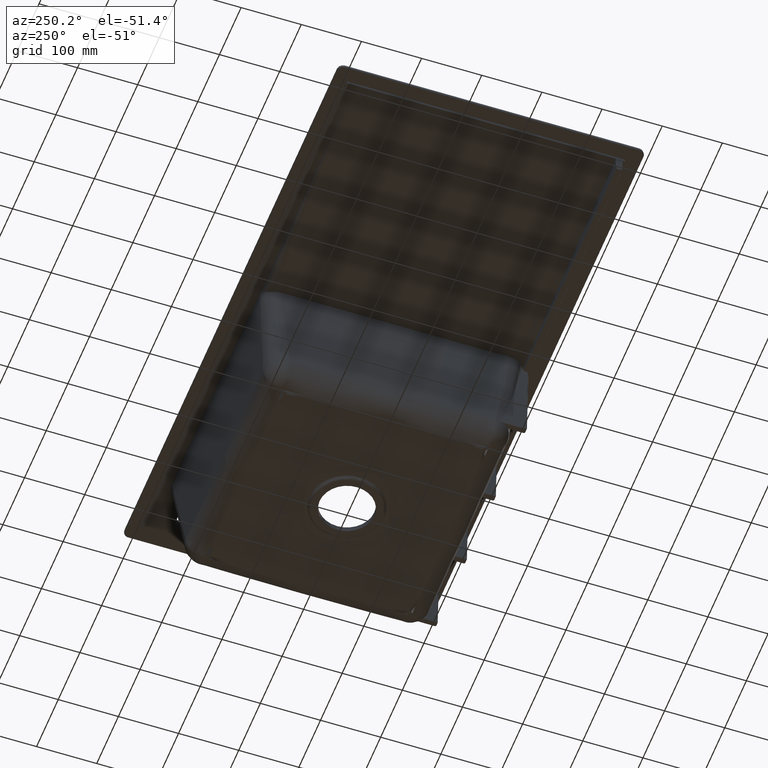
[diagram: clean part render]
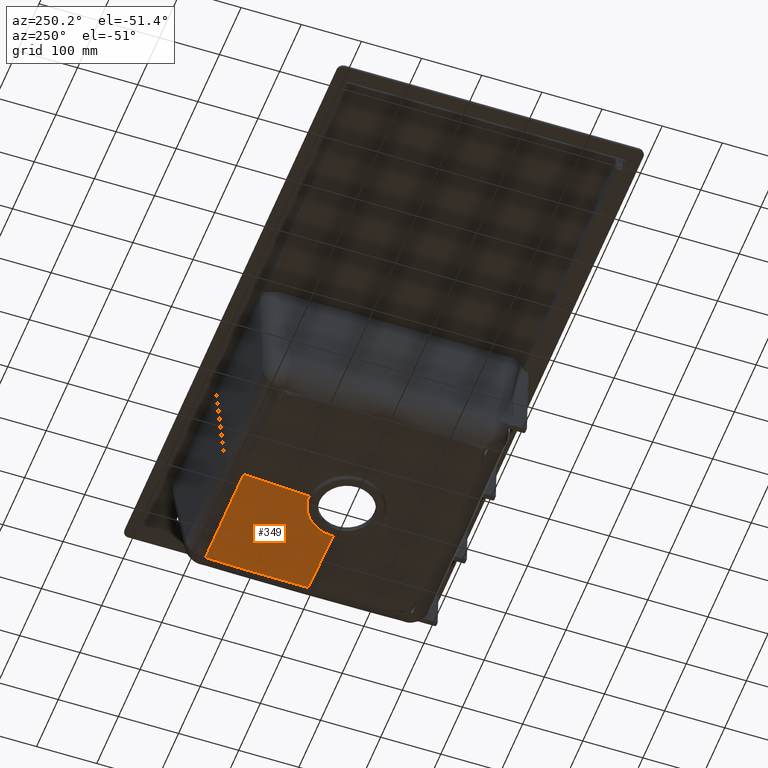
[diagram: same view with one face highlighted and labeled with its STEP entity id]
A machine part, auxiliary view. The second image highlights one B-rep face of the part: STEP entity #349.
In plain terms, the highlighted face is a freeform B-spline surface patch.
Its self-contained STEP definition (entity closure, byte-faithful):
#57=B_SPLINE_SURFACE_WITH_KNOTS('',3,3,((#7493,#7494,#7495,#7496,#7497,
#7498,#7499,#7500,#7501,#7502,#7503,#7504,#7505,#7506,#7507,#7508,#7509,
#7510,#7511,#7512,#7513,#7514,#7515,#7516,#7517,#7518,#7519,#7520,#7521,
#7522,#7523,#7524,#7525,#7526,#7527,#7528),(#7529,#7530,#7531,#7532,#7533,
#7534,#7535,#7536,#7537,#7538,#7539,#7540,#7541,#7542,#7543,#7544,#7545,
#7546,#7547,#7548,#7549,#7550,#7551,#7552,#7553,#7554,#7555,#7556,#7557,
#7558,#7559,#7560,#7561,#7562,#7563,#7564),(#7565,#7566,#7567,#7568,#7569,
#7570,#7571,#7572,#7573,#7574,#7575,#7576,#7577,#7578,#7579,#7580,#7581,
#7582,#7583,#7584,#7585,#7586,#7587,#7588,#7589,#7590,#7591,#7592,#7593,
#7594,#7595,#7596,#7597,#7598,#7599,#7600),(#7601,#7602,#7603,#7604,#7605,
#7606,#7607,#7608,#7609,#7610,#7611,#7612,#7613,#7614,#7615,#7616,#7617,
#7618,#7619,#7620,#7621,#7622,#7623,#7624,#7625,#7626,#7627,#7628,#7629,
#7630,#7631,#7632,#7633,#7634,#7635,#7636),(#7637,#7638,#7639,#7640,#7641,
#7642,#7643,#7644,#7645,#7646,#7647,#7648,#7649,#7650,#7651,#7652,#7653,
#7654,#7655,#7656,#7657,#7658,#7659,#7660,#7661,#7662,#7663,#7664,#7665,
#7666,#7667,#7668,#7669,#7670,#7671,#7672),(#7673,#7674,#7675,#7676,#7677,
#7678,#7679,#7680,#7681,#7682,#7683,#7684,#7685,#7686,#7687,#7688,#7689,
#7690,#7691,#7692,#7693,#7694,#7695,#7696,#7697,#7698,#7699,#7700,#7701,
#7702,#7703,#7704,#7705,#7706,#7707,#7708),(#7709,#7710,#7711,#7712,#7713,
#7714,#7715,#7716,#7717,#7718,#7719,#7720,#7721,#7722,#7723,#7724,#7725,
#7726,#7727,#7728,#7729,#7730,#7731,#7732,#7733,#7734,#7735,#7736,#7737,
#7738,#7739,#7740,#7741,#7742,#7743,#7744),(#7745,#7746,#7747,#7748,#7749,
#7750,#7751,#7752,#7753,#7754,#7755,#7756,#7757,#7758,#7759,#7760,#7761,
#7762,#7763,#7764,#7765,#7766,#7767,#7768,#7769,#7770,#7771,#7772,#7773,
#7774,#7775,#7776,#7777,#7778,#7779,#7780),(#7781,#7782,#7783,#7784,#7785,
#7786,#7787,#7788,#7789,#7790,#7791,#7792,#7793,#7794,#7795,#7796,#7797,
#7798,#7799,#7800,#7801,#7802,#7803,#7804,#7805,#7806,#7807,#7808,#7809,
#7810,#7811,#7812,#7813,#7814,#7815,#7816),(#7817,#7818,#7819,#7820,#7821,
#7822,#7823,#7824,#7825,#7826,#7827,#7828,#7829,#7830,#7831,#7832,#7833,
#7834,#7835,#7836,#7837,#7838,#7839,#7840,#7841,#7842,#7843,#7844,#7845,
#7846,#7847,#7848,#7849,#7850,#7851,#7852),(#7853,#7854,#7855,#7856,#7857,
#7858,#7859,#7860,#7861,#7862,#7863,#7864,#7865,#7866,#7867,#7868,#7869,
#7870,#7871,#7872,#7873,#7874,#7875,#7876,#7877,#7878,#7879,#7880,#7881,
#7882,#7883,#7884,#7885,#7886,#7887,#7888),(#7889,#7890,#7891,#7892,#7893,
#7894,#7895,#7896,#7897,#7898,#7899,#7900,#7901,#7902,#7903,#7904,#7905,
#7906,#7907,#7908,#7909,#7910,#7911,#7912,#7913,#7914,#7915,#7916,#7917,
#7918,#7919,#7920,#7921,#7922,#7923,#7924)),.UNSPECIFIED.,.F.,.F.,.F.,(4,
1,1,1,1,1,1,1,1,4),(4,1,1,1,1,1,1,1,1,1,1,1,1,1,1,1,1,1,1,1,1,1,1,1,1,1,
1,1,1,1,1,1,1,4),(0.,0.167731772913804,0.271765301299579,0.375798829685353,
0.427815593878241,0.479832358071128,0.531849122264015,0.557857504360459,
0.583865886456902,1.),(0.,0.0825609723011587,0.0968941111876054,0.111227250074052,
0.139893527846945,0.197226083392732,0.311891194484306,0.426556305575879,
0.483888861121666,0.51255513889456,0.526888277781006,0.534054847224229,
0.537638131945841,0.539429774306647,0.54032559548705,0.541221416667453,
0.544804701389065,0.548387986110676,0.551971270832288,0.555554555553899,
0.559137840275511,0.560929482636317,0.56182530381672,0.562721124997123,
0.569887694440346,0.59855397221324,0.655886527759026,0.7705516388506,0.885216749942173,
0.94254930548796,0.971215583260854,0.9855487221473,0.999881861033747,1.),
 .UNSPECIFIED.);
#349=ADVANCED_FACE('',(#590),#57,.T.);
#590=FACE_OUTER_BOUND('',#789,.T.);
#789=EDGE_LOOP('',(#1516,#1517,#1518,#1519,#1520,#1521,#1522));
#1066=B_SPLINE_CURVE_WITH_KNOTS('',3,(#6061,#6062,#6063,#6064),
 .UNSPECIFIED.,.F.,.F.,(4,4),(0.,1.),.UNSPECIFIED.);
#1067=B_SPLINE_CURVE_WITH_KNOTS('',3,(#6066,#6067,#6068,#6069,#6070,#6071,
#6072,#6073,#6074,#6075),.UNSPECIFIED.,.F.,.F.,(4,1,1,1,1,1,1,4),(0.,0.0585026445089107,
0.121269134874983,0.246802115607129,0.372335096339274,0.497868077071419,
0.74893403853571,1.),.UNSPECIFIED.);
#1073=B_SPLINE_CURVE_WITH_KNOTS('',3,(#6647,#6648,#6649,#6650,#6651,#6652,
#6653,#6654,#6655,#6656,#6657,#6658,#6659,#6660,#6661,#6662),
 .UNSPECIFIED.,.F.,.F.,(4,2,2,2,2,2,2,4),(0.,0.500000000000001,0.750000000000001,
0.875000000000001,0.937500000000001,0.968750000000001,0.984375,1.),
 .UNSPECIFIED.);
#1076=B_SPLINE_CURVE_WITH_KNOTS('',3,(#6782,#6783,#6784,#6785,#6786,#6787,
#6788,#6789,#6790,#6791,#6792,#6793,#6794,#6795,#6796,#6797),
 .UNSPECIFIED.,.F.,.F.,(4,2,2,2,2,2,2,4),(0.,0.0156249999999999,0.0312499999999998,
0.0624999999999997,0.125,0.25,0.5,1.),.UNSPECIFIED.);
#1077=B_SPLINE_CURVE_WITH_KNOTS('',3,(#7432,#7433,#7434,#7435,#7436,#7437,
#7438,#7439,#7440,#7441,#7442,#7443,#7444,#7445,#7446,#7447,#7448,#7449,
#7450,#7451,#7452,#7453,#7454,#7455,#7456,#7457,#7458,#7459,#7460,#7461,
#7462,#7463,#7464,#7465,#7466,#7467,#7468,#7469,#7470,#7471,#7472,#7473,
#7474,#7475,#7476),.UNSPECIFIED.,.F.,.F.,(4,2,2,2,1,1,1,1,2,2,2,2,2,2,1,
2,2,2,2,2,2,1,1,2,2,4),(0.,0.125000000000017,0.187500000000026,0.21875000000003,
0.234375000000032,0.242187500000033,0.246093750000034,0.248046875000034,
0.249023437500034,0.250000000000034,0.375000000000032,0.437500000000032,
0.468750000000031,0.484375000000031,0.492187500000031,0.496093750000031,
0.500000000000031,0.625000000000027,0.687500000000025,0.718750000000023,
0.734375000000023,0.742187500000023,0.746093750000022,0.748046875000022,
0.750000000000022,1.),.UNSPECIFIED.);
#1078=B_SPLINE_CURVE_WITH_KNOTS('',3,(#7478,#7479,#7480,#7481),
 .UNSPECIFIED.,.F.,.F.,(4,4),(0.,1.),.UNSPECIFIED.);
#1079=B_SPLINE_CURVE_WITH_KNOTS('',3,(#7483,#7484,#7485,#7486,#7487,#7488,
#7489,#7490,#7491,#7492),.UNSPECIFIED.,.F.,.F.,(4,1,1,1,1,1,1,4),(0.,0.251166706790263,
0.502333413580526,0.627916766975658,0.753500120370789,0.879083473765921,
0.941875150463486,1.),.UNSPECIFIED.);
#1516=ORIENTED_EDGE('',*,*,#2747,.T.);
#1517=ORIENTED_EDGE('',*,*,#2760,.T.);
#1518=ORIENTED_EDGE('',*,*,#2761,.F.);
#1519=ORIENTED_EDGE('',*,*,#2762,.T.);
#1520=ORIENTED_EDGE('',*,*,#2758,.F.);
#1521=ORIENTED_EDGE('',*,*,#2755,.F.);
#1522=ORIENTED_EDGE('',*,*,#2748,.T.);
#2402=VERTEX_POINT('',#5180);
#2406=VERTEX_POINT('',#6060);
#2407=VERTEX_POINT('',#6065);
#2411=VERTEX_POINT('',#6663);
#2412=VERTEX_POINT('',#6798);
#2413=VERTEX_POINT('',#7477);
#2414=VERTEX_POINT('',#7482);
#2747=EDGE_CURVE('',#2407,#2406,#1066,.T.);
#2748=EDGE_CURVE('',#2402,#2407,#1067,.T.);
#2755=EDGE_CURVE('',#2402,#2411,#1073,.T.);
#2758=EDGE_CURVE('',#2411,#2412,#1076,.T.);
#2760=EDGE_CURVE('',#2406,#2413,#1077,.T.);
#2761=EDGE_CURVE('',#2414,#2413,#1078,.T.);
#2762=EDGE_CURVE('',#2414,#2412,#1079,.T.);
#5180=CARTESIAN_POINT('',(179.461038803566,0.,-207.703006442128));
#6060=CARTESIAN_POINT('',(62.8972556436312,-8.470329472543E-19,-216.509420003816));
#6061=CARTESIAN_POINT('',(63.5531235225584,-2.97449877881255E-10,-216.461705668635));
#6062=CARTESIAN_POINT('',(63.3345020478598,-8.37870750973007E-8,-216.477626018753));
#6063=CARTESIAN_POINT('',(63.1158794204684,-1.70061671491297E-7,-216.493530782513));
#6064=CARTESIAN_POINT('',(62.8972556436311,-2.5911339473414E-7,-216.509420003816));
#6065=CARTESIAN_POINT('',(63.5531235225655,0.,-216.461705668635));
#6066=CARTESIAN_POINT('',(179.461038803566,0.000134057585189873,-207.703006442128));
#6067=CARTESIAN_POINT('',(177.201327241058,0.000314423219943259,-207.881530703932));
#6068=CARTESIAN_POINT('',(172.518055755821,0.000414982462532081,-208.262369217967));
#6069=CARTESIAN_POINT('',(162.981744111668,-0.000844601577566274,-208.971784074863));
#6070=CARTESIAN_POINT('',(150.85600480178,0.000160824534179384,-209.881084270988));
#6071=CARTESIAN_POINT('',(136.306003171625,-0.000444315473449281,-210.984272654063));
#6072=CARTESIAN_POINT('',(116.905697018629,0.000158362915691103,-212.451110971551));
#6073=CARTESIAN_POINT('',(92.6550286389724,1.45825628330571E-7,-214.280735949665));
#6074=CARTESIAN_POINT('',(73.2552720267381,3.70522695168432E-6,-215.755180377408));
#6075=CARTESIAN_POINT('',(63.5531235225584,-1.56800532497933E-14,-216.461705668635));
#6647=CARTESIAN_POINT('',(179.461041881267,0.000134054632189201,-207.70304539872));
#6648=CARTESIAN_POINT('',(179.460332208401,28.1684435258465,-207.705236694113));
#6649=CARTESIAN_POINT('',(179.426252347427,56.4748035052617,-207.795876896162));
#6650=CARTESIAN_POINT('',(179.202267892243,99.1455676656446,-207.552826911878));
#6651=CARTESIAN_POINT('',(179.10013134499,113.404302154335,-207.407252155464));
#6652=CARTESIAN_POINT('',(178.909097190248,134.830260704365,-207.032230773982));
#6653=CARTESIAN_POINT('',(178.839178252974,141.978397972647,-206.881147764502));
#6654=CARTESIAN_POINT('',(178.726485340933,152.707455405913,-206.60968225183));
#6655=CARTESIAN_POINT('',(178.687620553512,156.284955463536,-206.511708844375));
#6656=CARTESIAN_POINT('',(178.627652502025,161.652416815482,-206.352956981682));
#6657=CARTESIAN_POINT('',(178.607393043666,163.44175366403,-206.298074907128));
#6658=CARTESIAN_POINT('',(178.576520301078,166.126158782378,-206.212732396449));
#6659=CARTESIAN_POINT('',(178.484648347391,167.109072300166,-206.184036869805));
#6660=CARTESIAN_POINT('',(178.379101391177,168.985691401779,-206.118882840325));
#6661=CARTESIAN_POINT('',(178.33912574781,169.908739538237,-206.084225075746));
#6662=CARTESIAN_POINT('',(178.300508010788,170.829348109795,-206.047751344388));
#6663=CARTESIAN_POINT('',(178.300494478204,170.829334189496,-206.047414319664));
#6782=CARTESIAN_POINT('',(178.30050800279,170.829348070384,-206.0477507285));
#6783=CARTESIAN_POINT('',(177.343443237829,170.870006768873,-206.084549776382));
#6784=CARTESIAN_POINT('',(176.384407437653,170.911866594037,-206.119537001751));
#6785=CARTESIAN_POINT('',(174.434966332986,171.023343179231,-206.18528417413));
#6786=CARTESIAN_POINT('',(173.392345335679,171.145075510896,-206.21369161735));
#6787=CARTESIAN_POINT('',(170.609137412944,171.160708040649,-206.299593363335));
#6788=CARTESIAN_POINT('',(168.74458697573,171.180022487037,-206.355193401587));
#6789=CARTESIAN_POINT('',(163.165226386701,171.223084126437,-206.518091070956));
#6790=CARTESIAN_POINT('',(159.445409182398,171.251283499114,-206.620998536948));
#6791=CARTESIAN_POINT('',(148.287930610327,171.332257313357,-206.913099074049));
#6792=CARTESIAN_POINT('',(140.850964820149,171.382606269213,-207.085667717108));
#6793=CARTESIAN_POINT('',(118.547423673889,171.521113562781,-207.541557721465));
#6794=CARTESIAN_POINT('',(103.688222393139,171.59674390159,-207.763001724173));
#6795=CARTESIAN_POINT('',(59.1604599908204,171.768410454923,-208.237407985781));
#6796=CARTESIAN_POINT('',(29.5415895404008,171.807123683285,-208.301955334907));
#6797=CARTESIAN_POINT('',(6.58366091559304E-10,171.806864980335,-208.301974883399));
#6798=CARTESIAN_POINT('',(-1.31748640452013E-10,171.806864980335,-208.301974883399));
#7432=CARTESIAN_POINT('',(62.897255643631,-2.59113398635576E-7,-216.509420003816));
#7433=CARTESIAN_POINT('',(62.8972560987674,4.58730222025224,-216.509419899767));
#7434=CARTESIAN_POINT('',(62.41174582568,8.93246985939062,-216.507889668956));
#7435=CARTESIAN_POINT('',(61.1457540872592,14.9725182351797,-216.506027619491));
#7436=CARTESIAN_POINT('',(60.6364122632735,16.9072028195832,-216.505339647817));
#7437=CARTESIAN_POINT('',(59.771164576776,19.684972881345,-216.504219160157));
#7438=CARTESIAN_POINT('',(59.4658445830918,20.5902335406896,-216.503830684687));
#7439=CARTESIAN_POINT('',(58.9859551728197,21.9167385192001,-216.503225130603));
#7440=CARTESIAN_POINT('',(58.7405303059853,22.5721483266722,-216.502916624151));
#7441=CARTESIAN_POINT('',(58.4453357956018,23.3230213938609,-216.502546396842));
#7442=CARTESIAN_POINT('',(58.2956106272821,23.6950118684315,-216.502358658932));
#7443=CARTESIAN_POINT('',(58.2202270650973,23.8801452689814,-216.502264127503));
#7444=CARTESIAN_POINT('',(58.1878093584775,23.9593034488702,-216.502223471349));
#7445=CARTESIAN_POINT('',(58.166173136053,24.0120345204752,-216.502196335455));
#7446=CARTESIAN_POINT('',(58.1662792667601,24.0118268499651,-216.502196469284));
#7447=CARTESIAN_POINT('',(55.356799263236,30.8329816082667,-216.498672518165));
#7448=CARTESIAN_POINT('',(52.0638273970709,35.6097554587339,-216.496792397836));
#7449=CARTESIAN_POINT('',(48.252831511721,40.4769622949688,-216.49533637124));
#7450=CARTESIAN_POINT('',(47.1543492948546,41.7215857841734,-216.495088537457));
#7451=CARTESIAN_POINT('',(45.877598636492,43.1056584370215,-216.495026944734));
#7452=CARTESIAN_POINT('',(45.5146371738169,43.4862862867734,-216.495009670443));
#7453=CARTESIAN_POINT('',(45.0728179298695,43.9457350186723,-216.494902082781));
#7454=CARTESIAN_POINT('',(44.9423123802768,44.0801828526696,-216.494865342035));
#7455=CARTESIAN_POINT('',(44.7720245976052,44.2542309209086,-216.494830099172));
#7456=CARTESIAN_POINT('',(44.6932502032412,44.3343447831073,-216.494817339695));
#7457=CARTESIAN_POINT('',(44.6240981726431,44.4041384685647,-216.494815051895));
#7458=CARTESIAN_POINT('',(44.580142797624,44.4483779862339,-216.494816127031));
#7459=CARTESIAN_POINT('',(44.5862526039198,44.4423328906662,-216.494813516666));
#7460=CARTESIAN_POINT('',(43.0404498302452,45.9884570251905,-216.49506821092));
#7461=CARTESIAN_POINT('',(40.7648729357614,48.1400259473472,-216.495722845506));
#7462=CARTESIAN_POINT('',(35.8064922754134,51.8021499916363,-216.497699955646));
#7463=CARTESIAN_POINT('',(33.8944113277858,53.0913244727573,-216.498502800366));
#7464=CARTESIAN_POINT('',(30.5894028281627,55.0132965264863,-216.499951252833));
#7465=CARTESIAN_POINT('',(29.4150353668688,55.6516562820613,-216.500475133261));
#7466=CARTESIAN_POINT('',(27.5398514469302,56.5878508452749,-216.501329640943));
#7467=CARTESIAN_POINT('',(26.8958635076075,56.8963304956887,-216.501625950556));
#7468=CARTESIAN_POINT('',(25.9010478026548,57.3511728329532,-216.50208874135));
#7469=CARTESIAN_POINT('',(25.3964330113422,57.5766218839911,-216.502324720694));
#7470=CARTESIAN_POINT('',(24.7950236356328,57.8356171713341,-216.502608320118));
#7471=CARTESIAN_POINT('',(24.5345496337853,57.9456879989141,-216.50273166943));
#7472=CARTESIAN_POINT('',(24.3602934862412,58.0188553618946,-216.502814307189));
#7473=CARTESIAN_POINT('',(24.2382157799147,58.0696935610575,-216.502872305693));
#7474=CARTESIAN_POINT('',(17.3897291558142,60.9084401670686,-216.506129335463));
#7475=CARTESIAN_POINT('',(9.1954198472675,62.8987299827741,-216.509020108931));
#7476=CARTESIAN_POINT('',(6.13441730263278E-7,62.898728871169,-216.509020389765));
#7477=CARTESIAN_POINT('',(-5.42101086242752E-17,62.8987288711702,-216.509020389765));
#7478=CARTESIAN_POINT('',(2.88659516408108E-14,63.5469302534056,-216.462155338832));
#7479=CARTESIAN_POINT('',(-2.72050748088822E-7,63.3308645664112,-216.477796555451));
#7480=CARTESIAN_POINT('',(-4.76464165368307E-7,63.1147974375675,-216.493418219679));
#7481=CARTESIAN_POINT('',(-6.13441724595994E-7,62.8987288711698,-216.509020389765));
#7482=CARTESIAN_POINT('',(0.,63.5469302534056,-216.462155338832));
#7483=CARTESIAN_POINT('',(-2.90131741922077E-14,63.5469302534056,-216.462155338832));
#7484=CARTESIAN_POINT('',(-1.14147940714705E-5,72.6126838758867,-215.805876138747));
#7485=CARTESIAN_POINT('',(-0.000272395629376504,90.7391143669291,-214.424473738872));
#7486=CARTESIAN_POINT('',(6.19183621743998E-5,113.398398875373,-212.714943089126));
#7487=CARTESIAN_POINT('',(0.000105623554620154,131.525725794112,-211.345889271358));
#7488=CARTESIAN_POINT('',(7.24806001338359E-5,145.121188205753,-210.31863689538));
#7489=CARTESIAN_POINT('',(2.82192236972893E-5,156.450727539773,-209.462418768468));
#7490=CARTESIAN_POINT('',(4.50101164053275E-6,165.345952552824,-208.790190438846));
#7491=CARTESIAN_POINT('',(-3.79814212985852E-7,169.709362961954,-208.460464831599));
#7492=CARTESIAN_POINT('',(-4.63862285856548E-7,171.806864980335,-208.301974883399));
#7493=CARTESIAN_POINT('',(-0.000886977295329687,19.2123445278674,-219.38628570647));
#7494=CARTESIAN_POINT('',(-0.000895247117371973,19.4484018176159,-219.386048327656));
#7495=CARTESIAN_POINT('',(-0.000904952635787488,19.7254402371247,-219.385769738281));
#7496=CARTESIAN_POINT('',(-0.000756748206144099,19.6611388981341,-219.386252067061));
#7497=CARTESIAN_POINT('',(-0.00236321648170341,19.5476043646889,-219.388163813013));
#7498=CARTESIAN_POINT('',(-0.0140773010470332,19.1554712690431,-219.395158529593));
#7499=CARTESIAN_POINT('',(-0.109701263385663,17.5952167935539,-219.426247449899));
#7500=CARTESIAN_POINT('',(-0.66641478517627,13.2257511807974,-219.52975903596));
#7501=CARTESIAN_POINT('',(-2.33302707164409,6.35434119872405,-219.740308026848));
#7502=CARTESIAN_POINT('',(-4.33359907295708,0.485269468249672,-219.958715297292));
#7503=CARTESIAN_POINT('',(-5.56880748744339,-2.6774475867683,-220.087493701389));
#7504=CARTESIAN_POINT('',(-6.24842233948521,-4.31161405487141,-220.157012105938));
#7505=CARTESIAN_POINT('',(-6.60410240525819,-5.1408803778337,-220.19306517308));
#7506=CARTESIAN_POINT('',(-6.78601126574255,-5.55916703998626,-220.211442995973));
#7507=CARTESIAN_POINT('',(-6.87791353018426,-5.76819950920643,-220.220683689984));
#7508=CARTESIAN_POINT('',(-6.9308345050869,-5.8894056789935,-220.226043312726));
#7509=CARTESIAN_POINT('',(-7.00945569395453,-6.05519039976262,-220.233528042387));
#7510=CARTESIAN_POINT('',(-7.12035676719654,-6.24280704710698,-220.242517584518));
#7511=CARTESIAN_POINT('',(-7.22094790746087,-6.36911475045141,-220.248964289635));
#7512=CARTESIAN_POINT('',(-7.24591704613897,-6.3889222294485,-220.24957795667));
#7513=CARTESIAN_POINT('',(-7.1716423921449,-6.3242392365451,-220.244356728683));
#7514=CARTESIAN_POINT('',(-7.01052215216637,-6.22212896766175,-220.235358783706));
#7515=CARTESIAN_POINT('',(-6.8420270396255,-6.13907822415853,-220.226954891507));
#7516=CARTESIAN_POINT('',(-6.72799000920156,-6.09033524893377,-220.221556079322));
#7517=CARTESIAN_POINT('',(-6.44282628788827,-5.96904419953183,-220.208111319097));
#7518=CARTESIAN_POINT('',(-5.27991168527867,-5.48018305347258,-220.154131661806));
#7519=CARTESIAN_POINT('',(-2.40515361025203,-4.33535040153754,-220.02999998227));
#7520=CARTESIAN_POINT('',(3.36158028206126,-2.33606008740175,-219.823834017734));
#7521=CARTESIAN_POINT('',(10.1618534948469,-0.667367137975683,-219.676059978956));
#7522=CARTESIAN_POINT('',(14.5201790896452,-0.109533643734981,-219.648124526036));
#7523=CARTESIAN_POINT('',(16.0832937067836,-0.0135456165113943,-219.651733470759));
#7524=CARTESIAN_POINT('',(16.4769638656907,-0.00171398354697821,-219.654434629065));
#7525=CARTESIAN_POINT('',(16.5910417816039,-4.52139491905155E-5,-219.655432740681));
#7526=CARTESIAN_POINT('',(16.6077813529983,-5.75386675971949E-5,-219.655815297427));
#7527=CARTESIAN_POINT('',(16.6087166916005,-5.78264919561825E-5,-219.65576172427));
#7528=CARTESIAN_POINT('',(16.6087266729767,-5.78292752294204E-5,-219.655761098676));
#7529=CARTESIAN_POINT('',(-2.99596260519695,33.8967156702514,-218.486180535252));
#7530=CARTESIAN_POINT('',(-1.99742398260185,34.1047030104063,-218.487373473499));
#7531=CARTESIAN_POINT('',(-0.825532353589388,34.3487983486856,-218.488773513827));
#7532=CARTESIAN_POINT('',(0.519829302565867,34.291411504428,-218.48901517186));
#7533=CARTESIAN_POINT('',(1.2117758927398,34.1902356675541,-218.490304399228));
#7534=CARTESIAN_POINT('',(2.41462189093675,33.8407607997318,-218.494916409601));
#7535=CARTESIAN_POINT('',(4.75499277183603,32.4471777837932,-218.515399473915));
#7536=CARTESIAN_POINT('',(7.71840469462735,28.5239098547143,-218.583648670328));
#7537=CARTESIAN_POINT('',(9.67819446135761,22.2970516672292,-218.722892548865));
#7538=CARTESIAN_POINT('',(10.2950282811458,16.9350653958093,-218.867607133418));
#7539=CARTESIAN_POINT('',(10.3904784057907,14.0333345225381,-218.952999158323));
#7540=CARTESIAN_POINT('',(10.3819516206657,12.5308177206835,-218.999112246053));
#7541=CARTESIAN_POINT('',(10.3632756817595,11.7674142631861,-219.02303094139));
#7542=CARTESIAN_POINT('',(10.3502545974331,11.3822821830707,-219.035224397307));
#7543=CARTESIAN_POINT('',(10.3428679167039,11.1895427629878,-219.041355628524));
#7544=CARTESIAN_POINT('',(10.3383066775899,11.0781627990632,-219.044912001777));
#7545=CARTESIAN_POINT('',(10.331901537814,10.9217055184753,-219.049876753994));
#7546=CARTESIAN_POINT('',(10.326717549532,10.727463084043,-219.055832163877));
#7547=CARTESIAN_POINT('',(10.3507584124957,10.5504799955891,-219.060079779828));
#7548=CARTESIAN_POINT('',(10.4246456544771,10.4439423377839,-219.060438680013));
#7549=CARTESIAN_POINT('',(10.5641239717489,10.3931806169226,-219.056907632611));
#7550=CARTESIAN_POINT('',(10.7460268514562,10.3825615579616,-219.050867135813));
#7551=CARTESIAN_POINT('',(10.9102467173038,10.3826060535899,-219.045235231929));
#7552=CARTESIAN_POINT('',(11.0158502927573,10.3834206857726,-219.04161927548));
#7553=CARTESIAN_POINT('',(11.2797857958519,10.384966978124,-219.032614231038));
#7554=CARTESIAN_POINT('',(12.3555172421986,10.383609635144,-218.996456125177));
#7555=CARTESIAN_POINT('',(15.0087038934478,10.2936139419722,-218.913266791362));
#7556=CARTESIAN_POINT('',(20.3026708801254,9.67604149183715,-218.774900092611));
#7557=CARTESIAN_POINT('',(26.4824065776324,7.71770317319208,-218.675168606714));
#7558=CARTESIAN_POINT('',(30.3984717794478,4.75498190860348,-218.655638657168));
#7559=CARTESIAN_POINT('',(31.7940527947761,2.41478736720722,-218.657651156144));
#7560=CARTESIAN_POINT('',(32.1445824127769,1.21198557105746,-218.659339115557));
#7561=CARTESIAN_POINT('',(32.2461335990355,0.520062099405289,-218.659943156066));
#7562=CARTESIAN_POINT('',(32.2610558808662,0.171904415799854,-218.660211993017));
#7563=CARTESIAN_POINT('',(32.2619664460318,-0.00288399085598707,-218.660150375373));
#7564=CARTESIAN_POINT('',(32.2619734506932,-0.00431288296911937,-218.66014985853));
#7565=CARTESIAN_POINT('',(-7.84844116586165,57.6796919465991,-216.912419154905));
#7566=CARTESIAN_POINT('',(-5.23223875540695,57.8424158176117,-216.915766669943));
#7567=CARTESIAN_POINT('',(-2.16184604826678,58.0333896447275,-216.919695336056));
#7568=CARTESIAN_POINT('',(1.36278898563014,57.9875070299789,-216.919496838595));
#7569=CARTESIAN_POINT('',(3.17830630827489,57.9065118247236,-216.919776591021));
#7570=CARTESIAN_POINT('',(6.3487670024693,57.6264310724851,-216.920590263123));
#7571=CARTESIAN_POINT('',(12.6355105505459,56.5034643740691,-216.924252340057));
#7572=CARTESIAN_POINT('',(21.3016326480317,53.3039904627492,-216.936475926063));
#7573=CARTESIAN_POINT('',(29.1363313962886,48.1223429437643,-216.961835510347));
#7574=CARTESIAN_POINT('',(33.993476308008,43.5825873111099,-216.988456862361));
#7575=CARTESIAN_POINT('',(36.2446544125091,41.1040345077104,-217.004228071945));
#7576=CARTESIAN_POINT('',(37.3233219447066,39.8149812267922,-217.012760229919));
#7577=CARTESIAN_POINT('',(37.8506087811352,39.1583712799559,-217.01718961198));
#7578=CARTESIAN_POINT('',(38.1111940092891,38.8269975408457,-217.019448675949));
#7579=CARTESIAN_POINT('',(38.2407266432718,38.6606767594533,-217.020584742122));
#7580=CARTESIAN_POINT('',(38.3145105152123,38.5652290302764,-217.02124394633));
#7581=CARTESIAN_POINT('',(38.4250988051559,38.4239015916841,-217.022162528705));
#7582=CARTESIAN_POINT('',(38.5911810147351,38.2189495777557,-217.023257137113));
#7583=CARTESIAN_POINT('',(38.8171278604877,37.9598947071672,-217.024015368916));
#7584=CARTESIAN_POINT('',(39.0511584426551,37.7128679559812,-217.024035184593));
#7585=CARTESIAN_POINT('',(39.296254693136,37.4750927922611,-217.02331635614));
#7586=CARTESIAN_POINT('',(39.5118074688408,37.2818541386783,-217.022129079987));
#7587=CARTESIAN_POINT('',(39.6690843728365,37.1474288882255,-217.021031475842));
#7588=CARTESIAN_POINT('',(39.7610145771156,37.070599703242,-217.020328752669));
#7589=CARTESIAN_POINT('',(39.9905323940264,36.8781597566791,-217.018578561525));
#7590=CARTESIAN_POINT('',(40.9249123480437,36.0826497883207,-217.011547583492));
#7591=CARTESIAN_POINT('',(43.2188613850385,33.9922381885034,-216.995332950873));
#7592=CARTESIAN_POINT('',(47.7463143707552,29.1353735193784,-216.968171834604));
#7593=CARTESIAN_POINT('',(52.9198756504149,21.3013100428079,-216.948065483495));
#7594=CARTESIAN_POINT('',(56.1185903540716,12.6353736617501,-216.943492065101));
#7595=CARTESIAN_POINT('',(57.2421599351498,6.34861914465347,-216.943490065537));
#7596=CARTESIAN_POINT('',(57.5225028191471,3.17813684362559,-216.943715229916));
#7597=CARTESIAN_POINT('',(57.6035911283237,1.36260773712577,-216.943750019248));
#7598=CARTESIAN_POINT('',(57.6154847896187,0.450461173872206,-216.943857949251));
#7599=CARTESIAN_POINT('',(57.6163105278101,-0.00748076165736741,-216.943792162641));
#7600=CARTESIAN_POINT('',(57.6163169348233,-0.0112244294727193,-216.94379161683));
#7601=CARTESIAN_POINT('',(-14.5577641686713,90.5411542721339,-214.41246534596));
#7602=CARTESIAN_POINT('',(-9.70526105475855,90.641895058767,-214.41833519564));
#7603=CARTESIAN_POINT('',(-4.01033083345991,90.7601251220653,-214.425224090619));
#7604=CARTESIAN_POINT('',(2.52699871738122,90.7309955287054,-214.424276050143));
#7605=CARTESIAN_POINT('',(5.8957763219195,90.6783456727243,-214.423157517336));
#7606=CARTESIAN_POINT('',(11.7863349544924,90.495002655743,-214.418893386971));
#7607=CARTESIAN_POINT('',(23.528696462322,89.7478424991284,-214.400313913578));
#7608=CARTESIAN_POINT('',(40.0785180012023,87.551614630579,-214.338173480999));
#7609=CARTESIAN_POINT('',(56.0350491569395,83.8177709013217,-214.210674344964));
#7610=CARTESIAN_POINT('',(66.7542988318725,80.416773927124,-214.077661386946));
#7611=CARTESIAN_POINT('',(71.9857165917815,78.5242881715208,-213.999055698405));
#7612=CARTESIAN_POINT('',(74.5674051704668,77.5308620352165,-213.956578218002));
#7613=CARTESIAN_POINT('',(75.8494734920014,77.022151410583,-213.93453817601));
#7614=CARTESIAN_POINT('',(76.4883135527892,76.7652274220611,-213.923300513863));
#7615=CARTESIAN_POINT('',(76.8071342124059,76.6354947107028,-213.917649618366));
#7616=CARTESIAN_POINT('',(76.9892285557259,76.5621103022651,-213.914371410303));
#7617=CARTESIAN_POINT('',(77.2615576301185,76.4417526977718,-213.909798160274));
#7618=CARTESIAN_POINT('',(77.6644100984537,76.2220637146282,-213.904326148));
#7619=CARTESIAN_POINT('',(78.169476808487,75.8496159044136,-213.900465932146));
#7620=CARTESIAN_POINT('',(78.6248775629136,75.4084164198924,-213.900223655484));
#7621=CARTESIAN_POINT('',(79.0159458590378,74.9121343930598,-213.903600452754));
#7622=CARTESIAN_POINT('',(79.2779656301782,74.4664486632436,-213.909296675746));
#7623=CARTESIAN_POINT('',(79.4255967336627,74.1461341323373,-213.914589845324));
#7624=CARTESIAN_POINT('',(79.4985935760307,73.961970782261,-213.917984541296));
#7625=CARTESIAN_POINT('',(79.6804540458255,73.5013659370508,-213.926438862661));
#7626=CARTESIAN_POINT('',(80.4191082572215,71.6080268992975,-213.960392125118));
#7627=CARTESIAN_POINT('',(82.2156297261416,66.7522667857889,-214.038581824719));
#7628=CARTESIAN_POINT('',(85.681684865396,56.0350962661679,-214.168997696631));
#7629=CARTESIAN_POINT('',(89.4617794633233,40.0786422269417,-214.264005589038));
#7630=CARTESIAN_POINT('',(91.6663383353312,23.5288431257199,-214.283867493784));
#7631=CARTESIAN_POINT('',(92.412177132296,11.7865395194917,-214.282685197323));
#7632=CARTESIAN_POINT('',(92.594654937651,5.89601707921333,-214.281389386348));
#7633=CARTESIAN_POINT('',(92.6469795694237,2.5272596310959,-214.28083129075));
#7634=CARTESIAN_POINT('',(92.6544490273402,0.835476063699753,-214.280782226336));
#7635=CARTESIAN_POINT('',(92.6550384878593,-0.0138869118034507,-214.280735181989));
#7636=CARTESIAN_POINT('',(92.6550430957682,-0.0208304405604099,-214.280734795907));
#7637=CARTESIAN_POINT('',(-19.2005389457102,113.285315010187,-212.699472449551));
#7638=CARTESIAN_POINT('',(-12.8003208751098,113.343135912887,-212.707111585365));
#7639=CARTESIAN_POINT('',(-5.28898199339743,113.41099491235,-212.716076926425));
#7640=CARTESIAN_POINT('',(3.33339335140167,113.393427097669,-212.71459439763));
#7641=CARTESIAN_POINT('',(7.77716153656644,113.360377350282,-212.712492998383));
#7642=CARTESIAN_POINT('',(15.5502629286044,113.24395378613,-212.704670289377));
#7643=CARTESIAN_POINT('',(31.0683815712638,112.756817177961,-212.670542718054));
#7644=CARTESIAN_POINT('',(53.0743974530809,111.254815681635,-212.556552456448));
#7645=CARTESIAN_POINT('',(74.6519285867716,108.522859760959,-212.322736286412));
#7646=CARTESIAN_POINT('',(89.4282542578449,105.909896041423,-212.078838913608));
#7647=CARTESIAN_POINT('',(96.7222520045981,104.422975525777,-211.934710330101));
#7648=CARTESIAN_POINT('',(100.344159393905,103.634126865223,-211.856826393973));
#7649=CARTESIAN_POINT('',(102.148600926712,103.227764291332,-211.816415506233));
#7650=CARTESIAN_POINT('',(103.04922562278,103.022360423469,-211.79581108738));
#7651=CARTESIAN_POINT('',(103.499049756984,102.91794704868,-211.785450101674));
#7652=CARTESIAN_POINT('',(103.756104193905,102.859830777149,-211.779439478493));
#7653=CARTESIAN_POINT('',(104.14037170298,102.75398377453,-211.771054326611));
#7654=CARTESIAN_POINT('',(104.707089428073,102.524092207491,-211.761021023022));
#7655=CARTESIAN_POINT('',(105.405331052662,102.073162603206,-211.753942272267));
#7656=CARTESIAN_POINT('',(106.013939171196,101.497575033015,-211.753496430008));
#7657=CARTESIAN_POINT('',(106.50603310707,100.822380386422,-211.759685576827));
#7658=CARTESIAN_POINT('',(106.800212656001,100.201976660607,-211.770127295854));
#7659=CARTESIAN_POINT('',(106.941168617404,99.7530087547659,-211.779830499591));
#7660=CARTESIAN_POINT('',(107.001062323965,99.4945597885416,-211.786053574045));
#7661=CARTESIAN_POINT('',(107.149940760521,98.8483589120068,-211.801551830482));
#7662=CARTESIAN_POINT('',(107.753139840603,96.1952160019435,-211.863794094329));
#7663=CARTESIAN_POINT('',(109.205408833144,89.4255668910267,-212.007129143552));
#7664=CARTESIAN_POINT('',(111.936908742991,74.6524951737677,-212.2462026555));
#7665=CARTESIAN_POINT('',(114.75264285546,53.0745531302065,-212.420369056154));
#7666=CARTESIAN_POINT('',(116.269207505234,31.0683488327358,-212.456785307762));
#7667=CARTESIAN_POINT('',(116.753662952057,15.5502723586788,-212.454655494499));
#7668=CARTESIAN_POINT('',(116.868430751494,7.77721711904164,-212.452276361122));
#7669=CARTESIAN_POINT('',(116.900860959802,3.33347455695912,-212.451300998943));
#7670=CARTESIAN_POINT('',(116.905274937172,1.10210642356857,-212.451143457378));
#7671=CARTESIAN_POINT('',(116.905704155753,-0.0181579233867827,-212.45111042845));
#7672=CARTESIAN_POINT('',(116.905707545365,-0.0273160666595641,-212.451110161513));
#7673=CARTESIAN_POINT('',(-22.9149827264314,131.480585925346,-211.327605033118));
#7674=CARTESIAN_POINT('',(-15.2765925098058,131.504056825559,-211.33667900762));
#7675=CARTESIAN_POINT('',(-6.31212648772088,131.53160243157,-211.347328284995));
#7676=CARTESIAN_POINT('',(3.97828521557215,131.523263901394,-211.345421502555));
#7677=CARTESIAN_POINT('',(9.28204564703687,131.505883689325,-211.342532157278));
#7678=CARTESIAN_POINT('',(18.5611806761428,131.44297678383,-211.33185111666));
#7679=CARTESIAN_POINT('',(37.0999032092098,131.163819539944,-211.285230047703));
#7680=CARTESIAN_POINT('',(63.4708704829306,130.217138478728,-211.129602362797));
#7681=CARTESIAN_POINT('',(89.5451967261056,128.286627762927,-210.810503594587));
#7682=CARTESIAN_POINT('',(107.567179993378,126.304043508835,-210.477718701599));
#7683=CARTESIAN_POINT('',(116.511240259985,125.141551300067,-210.28107910353));
#7684=CARTESIAN_POINT('',(120.965322005432,124.516352609371,-210.174823255269));
#7685=CARTESIAN_POINT('',(123.187661772915,124.191862455,-210.119692252319));
#7686=CARTESIAN_POINT('',(124.297714013146,124.027671669371,-210.091582696928));
#7687=CARTESIAN_POINT('',(124.852340845787,123.943512255771,-210.077447771045));
#7688=CARTESIAN_POINT('',(125.1693633114,123.897609631754,-210.069247862004));
#7689=CARTESIAN_POINT('',(125.643181499168,123.803369817362,-210.057808157418));
#7690=CARTESIAN_POINT('',(126.340991326966,123.565314242335,-210.044118271929));
#7691=CARTESIAN_POINT('',(127.193772748171,123.051596612961,-210.03445462506));
#7692=CARTESIAN_POINT('',(127.924946624916,122.368495982448,-210.033835860312));
#7693=CARTESIAN_POINT('',(128.49786094151,121.550168646355,-210.042264816179));
#7694=CARTESIAN_POINT('',(128.817768205141,120.789988360781,-210.056494540424));
#7695=CARTESIAN_POINT('',(128.953383978516,120.238096240129,-210.069719898195));
#7696=CARTESIAN_POINT('',(129.002795134201,119.920217915128,-210.07820231958));
#7697=CARTESIAN_POINT('',(129.125287839035,119.125538048516,-210.099327335032));
#7698=CARTESIAN_POINT('',(129.620122391195,115.864543157262,-210.184166416993));
#7699=CARTESIAN_POINT('',(130.796988425934,107.563760242896,-210.379530774145));
#7700=CARTESIAN_POINT('',(132.940842622704,89.54591859195,-210.70534655651));
#7701=CARTESIAN_POINT('',(134.985088248674,63.4707158535313,-210.942599783482));
#7702=CARTESIAN_POINT('',(135.951261396129,37.0993179873937,-210.992083603652));
#7703=CARTESIAN_POINT('',(136.226615587081,18.56057578301,-210.989124060204));
#7704=CARTESIAN_POINT('',(136.287218849921,9.28147096016091,-210.985857488166));
#7705=CARTESIAN_POINT('',(136.303735728419,3.97772708690571,-210.984541063444));
#7706=CARTESIAN_POINT('',(136.305706508289,1.31468470546187,-210.984294701888));
#7707=CARTESIAN_POINT('',(136.306008149413,-0.0223040386705294,-210.98427228071));
#7708=CARTESIAN_POINT('',(136.306010569425,-0.0332339005327973,-210.984272104175));
#7709=CARTESIAN_POINT('',(-25.7008677508553,145.126889251145,-210.298213266755));
#7710=CARTESIAN_POINT('',(-17.1338528580987,145.124637016401,-210.308379889169));
#7711=CARTESIAN_POINT('',(-7.07954668378806,145.121993778589,-210.320311505464));
#7712=CARTESIAN_POINT('',(4.46188563135269,145.120628638547,-210.318076587722));
#7713=CARTESIAN_POINT('',(10.4106367166929,145.11502684651,-210.314586401142));
#7714=CARTESIAN_POINT('',(20.8192905463853,145.092302791117,-210.30173224176));
#7715=CARTESIAN_POINT('',(41.6234522527306,144.969218448117,-210.245637252767));
#7716=CARTESIAN_POINT('',(71.2681114797081,144.439147987231,-210.058523063309));
#7717=CARTESIAN_POINT('',(100.715011423501,143.109835316834,-209.675106574849));
#7718=CARTESIAN_POINT('',(121.171222321953,141.600113308059,-209.27538190946));
#7719=CARTESIAN_POINT('',(131.352821867299,140.680980710127,-209.03921896237));
#7720=CARTESIAN_POINT('',(136.431030630085,140.178538591651,-208.91161378685));
#7721=CARTESIAN_POINT('',(138.96679221425,139.915462277345,-208.845407464433));
#7722=CARTESIAN_POINT('',(140.233914187032,139.782186060842,-208.81165143734));
#7723=CARTESIAN_POINT('',(140.867142581762,139.713219495574,-208.794677246776));
#7724=CARTESIAN_POINT('',(141.229140805347,139.676478465366,-208.784830339455));
#7725=CARTESIAN_POINT('',(141.77012160712,139.590946079043,-208.771092169711));
#7726=CARTESIAN_POINT('',(142.566249920571,139.346770552027,-208.754648522811));
#7727=CARTESIAN_POINT('',(143.534935403248,138.785965973036,-208.743031107737));
#7728=CARTESIAN_POINT('',(144.358032815228,138.022234613744,-208.742267560675));
#7729=CARTESIAN_POINT('',(144.991561636562,137.096561824319,-208.75236129037));
#7730=CARTESIAN_POINT('',(145.330764037786,136.231552503252,-208.769419457149));
#7731=CARTESIAN_POINT('',(145.462374217438,135.602469589412,-208.785277642343));
#7732=CARTESIAN_POINT('',(145.503923201624,135.240020598111,-208.795449553658));
#7733=CARTESIAN_POINT('',(145.606625962391,134.333984870384,-208.820782090295));
#7734=CARTESIAN_POINT('',(146.020184483734,130.617114847669,-208.922517388435));
#7735=CARTESIAN_POINT('',(146.99049174268,121.168016622591,-209.156774070189));
#7736=CARTESIAN_POINT('',(148.693598285845,100.716672594526,-209.547374255865));
#7737=CARTESIAN_POINT('',(150.159211193082,71.2686311250284,-209.831592067414));
#7738=CARTESIAN_POINT('',(150.712579585853,41.6234461035841,-209.890626854362));
#7739=CARTESIAN_POINT('',(150.831103611457,20.8192818290767,-209.88694915843));
#7740=CARTESIAN_POINT('',(150.851082354468,10.4106789566314,-209.882992066513));
#7741=CARTESIAN_POINT('',(150.855663895891,4.46195663143385,-209.881412624972));
#7742=CARTESIAN_POINT('',(150.85580220954,1.47516993487184,-209.881098454981));
#7743=CARTESIAN_POINT('',(150.856008159939,-0.0243563827411041,-209.88108402549));
#7744=CARTESIAN_POINT('',(150.85600985269,-0.0366149867475483,-209.881083917092));
#7745=CARTESIAN_POINT('',(-28.0225198032977,156.499007107178,-209.440359278518));
#7746=CARTESIAN_POINT('',(-18.681630063525,156.475247198082,-209.451360312866));
#7747=CARTESIAN_POINT('',(-7.71909917501691,156.447362409306,-209.464271200608));
#7748=CARTESIAN_POINT('',(4.86488123812648,156.451718264073,-209.461789009151));
#7749=CARTESIAN_POINT('',(11.3511408656208,156.455886310369,-209.457830629272));
#7750=CARTESIAN_POINT('',(22.7010899193284,156.466570786477,-209.443270733388));
#7751=CARTESIAN_POINT('',(45.3931802251871,156.473402228739,-209.37967152905));
#7752=CARTESIAN_POINT('',(77.7660132469415,156.290324222373,-209.167318245396));
#7753=CARTESIAN_POINT('',(110.023492543056,155.46185153814,-208.731695364779));
#7754=CARTESIAN_POINT('',(132.508296266742,154.3460795913,-208.277264358536));
#7755=CARTESIAN_POINT('',(143.721212766585,153.629697543749,-208.00871643818));
#7756=CARTESIAN_POINT('',(149.319544268253,153.229528390222,-207.863597306662));
#7757=CARTESIAN_POINT('',(152.116499083869,153.017618275117,-207.788300318433));
#7758=CARTESIAN_POINT('',(153.514516676426,152.910098220285,-207.749908304604));
#7759=CARTESIAN_POINT('',(154.213248456759,152.853789377497,-207.730602765867));
#7760=CARTESIAN_POINT('',(154.612727668238,152.824681304851,-207.719403192104));
#7761=CARTESIAN_POINT('',(155.209679098189,152.746402554117,-207.70377938297));
#7762=CARTESIAN_POINT('',(156.087742153248,152.497123240822,-207.685085556617));
#7763=CARTESIAN_POINT('',(157.153017904232,151.89707444671,-207.671899488436));
#7764=CARTESIAN_POINT('',(158.052721802537,151.066145734002,-207.671074760749));
#7765=CARTESIAN_POINT('',(158.736766241106,150.051013331434,-207.682615250305));
#7766=CARTESIAN_POINT('',(159.092050856474,149.098642265595,-207.702079967674));
#7767=CARTESIAN_POINT('',(159.220325089604,148.405230744587,-207.720166819974));
#7768=CARTESIAN_POINT('',(159.255323433272,148.005637849097,-207.73176643116));
#7769=CARTESIAN_POINT('',(159.341537494357,147.00680136684,-207.760654705535));
#7770=CARTESIAN_POINT('',(159.68737792118,142.910018204615,-207.876672839871));
#7771=CARTESIAN_POINT('',(160.485582634099,132.503947339697,-208.143851291404));
#7772=CARTESIAN_POINT('',(161.821460603971,110.024593202444,-208.589514060483));
#7773=CARTESIAN_POINT('',(162.804956101103,77.7657239698782,-208.914257241983));
#7774=CARTESIAN_POINT('',(163.014376454863,45.3922492140928,-208.982245007652));
#7775=CARTESIAN_POINT('',(163.002233765901,22.7001330885012,-208.978354273265));
#7776=CARTESIAN_POINT('',(162.988367368001,11.3502296711148,-208.973923990338));
#7777=CARTESIAN_POINT('',(162.983006546415,4.86399481956009,-208.972156100844));
#7778=CARTESIAN_POINT('',(162.981619284348,1.60740565301838,-208.971791276547));
#7779=CARTESIAN_POINT('',(162.981746130576,-0.0275765075065124,-208.971783943212));
#7780=CARTESIAN_POINT('',(162.981747222487,-0.0409424609336356,-208.971783894996));
#7781=CARTESIAN_POINT('',(-29.8798680051287,165.596559771993,-208.754202006631));
#7782=CARTESIAN_POINT('',(-19.9198664213918,165.555640545972,-208.765819143928));
#7783=CARTESIAN_POINT('',(-8.23074171773572,165.50761746769,-208.779453094225));
#7784=CARTESIAN_POINT('',(5.18729630334864,165.5166169895,-208.776779151456));
#7785=CARTESIAN_POINT('',(12.103573062211,165.528635940096,-208.772460475978));
#7786=CARTESIAN_POINT('',(24.2065774072885,165.56610999674,-208.756589221023));
#7787=CARTESIAN_POINT('',(48.4090527303145,165.677005079082,-208.687198666139));
#7788=CARTESIAN_POINT('',(82.9644935829465,165.771722287009,-208.455215480849));
#7789=CARTESIAN_POINT('',(117.470509734989,165.344137291923,-207.978618524503));
#7790=CARTESIAN_POINT('',(141.578237869692,164.543681693191,-207.481036379789));
#7791=CARTESIAN_POINT('',(153.616232253918,163.989579277627,-207.186894954063));
#7792=CARTESIAN_POINT('',(159.630673861943,163.671268316914,-207.027922827682));
#7793=CARTESIAN_POINT('',(162.636589151999,163.500311123402,-206.945432507195));
#7794=CARTESIAN_POINT('',(164.139326167048,163.413405991418,-206.903371318295));
#7795=CARTESIAN_POINT('',(164.890462114596,163.3672283264,-206.882220509864));
#7796=CARTESIAN_POINT('',(165.31992694862,163.344229477678,-206.869950122506));
#7797=CARTESIAN_POINT('',(165.961656128121,163.271757923079,-206.852834781286));
#7798=CARTESIAN_POINT('',(166.905268841928,163.018402015428,-206.832366280343));
#7799=CARTESIAN_POINT('',(168.047819283817,162.386966435382,-206.817959243744));
#7800=CARTESIAN_POINT('',(169.008810836162,161.50228843255,-206.817119516846));
#7801=CARTESIAN_POINT('',(169.733270221971,160.415596938367,-206.829851346595));
#7802=CARTESIAN_POINT('',(170.101422643381,159.393343647567,-206.851269567025));
#7803=CARTESIAN_POINT('',(170.227029538337,158.648474263036,-206.871159127458));
#7804=CARTESIAN_POINT('',(170.256788178952,158.219169114768,-206.883912195285));
#7805=CARTESIAN_POINT('',(170.32981330115,157.146099206536,-206.915673296593));
#7806=CARTESIAN_POINT('',(170.621487490659,152.745414983403,-207.043233372063));
#7807=CARTESIAN_POINT('',(171.282030509692,141.573840948909,-207.337041176692));
#7808=CARTESIAN_POINT('',(172.324166119723,117.472241084495,-207.827367629672));
#7809=CARTESIAN_POINT('',(172.922013485589,82.9649426606237,-208.185321239324));
#7810=CARTESIAN_POINT('',(172.856298241112,48.4090662329354,-208.261031252019));
#7811=CARTESIAN_POINT('',(172.739622492555,24.2067459053995,-208.257180734793));
#7812=CARTESIAN_POINT('',(172.698675768326,12.1038794563283,-208.252424363031));
#7813=CARTESIAN_POINT('',(172.685357335543,5.18767842111438,-208.250519513763));
#7814=CARTESIAN_POINT('',(172.68274729456,1.71526914909141,-208.250115497513));
#7815=CARTESIAN_POINT('',(172.682809576824,-0.028066742417533,-208.250113047543));
#7816=CARTESIAN_POINT('',(172.682810177585,-0.0423184859219793,-208.250113040888));
#7817=CARTESIAN_POINT('',(-38.2358190524728,206.533827573751,-205.661815606403));
#7818=CARTESIAN_POINT('',(-25.490475238663,206.416312355347,-205.678685113181));
#7819=CARTESIAN_POINT('',(-10.5324542004075,206.27839570634,-205.698483279552));
#7820=CARTESIAN_POINT('',(6.6378463791342,206.308928095298,-205.694307511066));
#7821=CARTESIAN_POINT('',(15.4886710698607,206.356574323502,-205.687450216769));
#7822=CARTESIAN_POINT('',(30.9794597177254,206.515046987148,-205.662579081753));
#7823=CARTESIAN_POINT('',(61.9766006193008,207.094828989915,-205.555354589655));
#7824=CARTESIAN_POINT('',(106.350520687237,208.439738609241,-205.204567273812));
#7825=CARTESIAN_POINT('',(150.971535284934,209.815499238927,-204.500991309574));
#7826=CARTESIAN_POINT('',(182.380073851357,210.433232630689,-203.77623551763));
#7827=CARTESIAN_POINT('',(198.129770634481,210.608966228227,-203.350031121675));
#7828=CARTESIAN_POINT('',(206.016142329787,210.658794087832,-203.120225400035));
#7829=CARTESIAN_POINT('',(209.962099470443,210.672010782181,-203.001111499888));
#7830=CARTESIAN_POINT('',(211.935934378458,210.677815018808,-202.9404115033));
#7831=CARTESIAN_POINT('',(212.922819486729,210.677198601682,-202.909893136759));
#7832=CARTESIAN_POINT('',(213.487179902445,210.681674614255,-202.89219616683));
#7833=CARTESIAN_POINT('',(214.330349422505,210.6353104278,-202.86745704583));
#7834=CARTESIAN_POINT('',(215.568846480199,210.363572156386,-202.837634694839));
#7835=CARTESIAN_POINT('',(217.059014592783,209.59084543855,-202.815909799525));
#7836=CARTESIAN_POINT('',(218.295682547769,208.464244688599,-202.813179549545));
#7837=CARTESIAN_POINT('',(219.201891562334,207.055486008492,-202.829450080209));
#7838=CARTESIAN_POINT('',(219.627851429089,205.718719707564,-202.858141222097));
#7839=CARTESIAN_POINT('',(219.741387110694,204.742259700769,-202.885080978983));
#7840=CARTESIAN_POINT('',(219.747528174581,204.179232098155,-202.902417906802));
#7841=CARTESIAN_POINT('',(219.761105879144,202.772068416554,-202.945590264684));
#7842=CARTESIAN_POINT('',(219.808635176759,197.003650477997,-203.118876813765));
#7843=CARTESIAN_POINT('',(219.848713546821,182.386845707025,-203.516837171891));
#7844=CARTESIAN_POINT('',(219.566999636624,150.984085393924,-204.175182848409));
#7845=CARTESIAN_POINT('',(218.426985911248,106.357292060036,-204.640062489318));
#7846=CARTESIAN_POINT('',(217.121525960185,61.979197767927,-204.72017765989));
#7847=CARTESIAN_POINT('',(216.533860018055,30.9801719696831,-204.704848663851));
#7848=CARTESIAN_POINT('',(216.370910232845,15.4886437964977,-204.695589372466));
#7849=CARTESIAN_POINT('',(216.321747950664,6.63742823525301,-204.692188924533));
#7850=CARTESIAN_POINT('',(216.313633915377,2.19375210836042,-204.691462900896));
#7851=CARTESIAN_POINT('',(216.31340902815,-0.0372119775699791,-204.691486585501));
#7852=CARTESIAN_POINT('',(216.313407446548,-0.0554500739030295,-204.691486805028));
#7853=CARTESIAN_POINT('',(-46.1403076266232,245.216324771275,-202.776151085563));
#7854=CARTESIAN_POINT('',(-30.7599837740272,245.019767569526,-202.782023317526));
#7855=CARTESIAN_POINT('',(-12.7095324780121,244.789086718519,-202.788915008366));
#7856=CARTESIAN_POINT('',(8.01110651747126,244.832232115842,-202.787754706127));
#7857=CARTESIAN_POINT('',(18.6924650339252,244.909739442318,-202.784616188191));
#7858=CARTESIAN_POINT('',(37.3891145620746,245.176359224528,-202.771680120574));
#7859=CARTESIAN_POINT('',(74.8168394892635,246.188613000067,-202.705920238678));
#7860=CARTESIAN_POINT('',(128.484724882828,248.704299455678,-202.442151910361));
#7861=CARTESIAN_POINT('',(182.68071365882,251.778229771338,-201.802422276004));
#7862=CARTESIAN_POINT('',(220.99954704293,253.733696150071,-201.078547139618));
#7863=CARTESIAN_POINT('',(240.262122665998,254.598243768126,-200.637905532863));
#7864=CARTESIAN_POINT('',(249.920067362131,254.995597844684,-200.396664101275));
#7865=CARTESIAN_POINT('',(254.755646818518,255.182694121141,-200.270731560939));
#7866=CARTESIAN_POINT('',(257.175306208309,255.27603025301,-200.206318057089));
#7867=CARTESIAN_POINT('',(258.385291672232,255.318431467574,-200.173897989222));
#7868=CARTESIAN_POINT('',(259.077309400149,255.348849148046,-200.155044795862));
#7869=CARTESIAN_POINT('',(260.111111740939,255.327131994368,-200.129058777695));
#7870=CARTESIAN_POINT('',(261.62868502316,255.038018801897,-200.099332133468));
#7871=CARTESIAN_POINT('',(263.447922167427,254.131834323773,-200.082600772935));
#7872=CARTESIAN_POINT('',(264.945712231358,252.776737063925,-200.089986738959));
#7873=CARTESIAN_POINT('',(266.024332290047,251.06379206387,-200.121496500244));
#7874=CARTESIAN_POINT('',(266.505518176104,249.429977656135,-200.16696575278));
#7875=CARTESIAN_POINT('',(266.608093220028,248.234788440694,-200.207497221639));
#7876=CARTESIAN_POINT('',(266.592179874054,247.545464957857,-200.233124148857));
#7877=CARTESIAN_POINT('',(266.550239953407,245.822762558901,-200.296974014149));
#7878=CARTESIAN_POINT('',(266.369749299249,238.762580375707,-200.55400318861));
#7879=CARTESIAN_POINT('',(265.830212812537,220.891988411363,-201.152692000374));
#7880=CARTESIAN_POINT('',(264.311234092979,182.594102352565,-202.184944992195));
#7881=CARTESIAN_POINT('',(261.545977347611,128.410967926184,-203.028422717946));
#7882=CARTESIAN_POINT('',(259.080854810652,74.7562903099243,-203.310916196799));
#7883=CARTESIAN_POINT('',(258.052892380449,37.3368116671955,-203.361028520653));
#7884=CARTESIAN_POINT('',(257.776056293925,18.6437838880539,-203.367441384758));
#7885=CARTESIAN_POINT('',(257.693528588464,7.96429216605338,-203.368438260604));
#7886=CARTESIAN_POINT('',(257.68036557917,2.60287791210336,-203.368396612519));
#7887=CARTESIAN_POINT('',(257.679919702736,-0.088852745846035,-203.368437464274));
#7888=CARTESIAN_POINT('',(257.679916468965,-0.110857602512591,-203.368437802358));
#7889=CARTESIAN_POINT('',(-53.579826284647,281.623380957157,-200.060231536533));
#7890=CARTESIAN_POINT('',(-35.7195212190755,281.352431300506,-200.055753392202));
#7891=CARTESIAN_POINT('',(-14.7585473275223,281.034442965276,-200.050497811954));
#7892=CARTESIAN_POINT('',(9.30358664767083,281.089459429295,-200.052175595596));
#7893=CARTESIAN_POINT('',(21.7078005295153,281.19507131885,-200.05253710247));
#7894=CARTESIAN_POINT('',(43.4217308861679,281.563476624415,-200.050834039464));
#7895=CARTESIAN_POINT('',(86.9017701904048,282.98276265668,-200.024099673052));
#7896=CARTESIAN_POINT('',(149.316917066913,286.600356722913,-199.842231568288));
#7897=CARTESIAN_POINT('',(212.524646246007,291.272564390077,-199.262592597351));
#7898=CARTESIAN_POINT('',(257.347286517351,294.487073580078,-198.539546313254));
#7899=CARTESIAN_POINT('',(279.916101048603,295.999916746855,-198.085316743394));
#7900=CARTESIAN_POINT('',(291.241408569044,296.724354321722,-197.833312290677));
#7901=CARTESIAN_POINT('',(296.914279616705,297.075101969575,-197.700962206634));
#7902=CARTESIAN_POINT('',(299.753538518758,297.25082106167,-197.633053637126));
#7903=CARTESIAN_POINT('',(301.173500788,297.333709459,-197.598843732718));
#7904=CARTESIAN_POINT('',(301.985666574459,297.388542826908,-197.578902329069));
#7905=CARTESIAN_POINT('',(303.198888040643,297.39002288055,-197.551742760626));
#7906=CARTESIAN_POINT('',(304.979121298888,297.084556821202,-197.522106193354));
#7907=CARTESIAN_POINT('',(307.108070472974,296.052765039278,-197.510074630261));
#7908=CARTESIAN_POINT('',(308.851622521794,294.482612240701,-197.526981740761));
#7909=CARTESIAN_POINT('',(310.092511798482,292.483374233637,-197.572834307335));
#7910=CARTESIAN_POINT('',(310.625675114472,290.569985137143,-197.634094722834));
#7911=CARTESIAN_POINT('',(310.717934264106,289.168933137094,-197.687418391197));
#7912=CARTESIAN_POINT('',(310.6812638265,288.360742943459,-197.720847670792));
#7913=CARTESIAN_POINT('',(310.587072023302,286.341062928168,-197.804158719529));
#7914=CARTESIAN_POINT('',(310.191974355709,278.065102632375,-198.140004482581));
#7915=CARTESIAN_POINT('',(309.1069180038,257.132122721328,-198.927614191887));
#7916=CARTESIAN_POINT('',(306.423454757785,212.344706548933,-200.311779951053));
#7917=CARTESIAN_POINT('',(302.12855752301,149.167368741382,-201.511585286067));
#7918=CARTESIAN_POINT('',(298.571987846387,86.7817891729805,-201.984552466832));
#7919=CARTESIAN_POINT('',(297.129628721526,43.3195313825012,-202.096256621173));
#7920=CARTESIAN_POINT('',(296.745605527883,21.6133275036361,-202.117419749268));
#7921=CARTESIAN_POINT('',(296.631675071099,9.21310527739491,-202.122555282788));
#7922=CARTESIAN_POINT('',(296.61376008627,2.98793749209672,-202.123157752869));
#7923=CARTESIAN_POINT('',(296.613106219992,-0.137455821870557,-202.123214761942));
#7924=CARTESIAN_POINT('',(296.613101431239,-0.163005864733353,-202.123215211609));